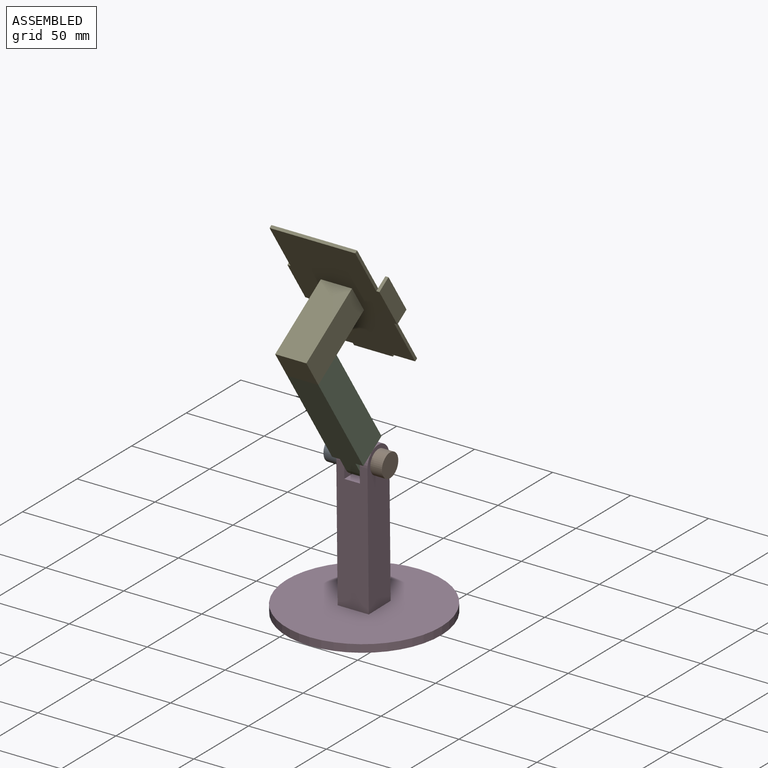
[diagram: assembled view]
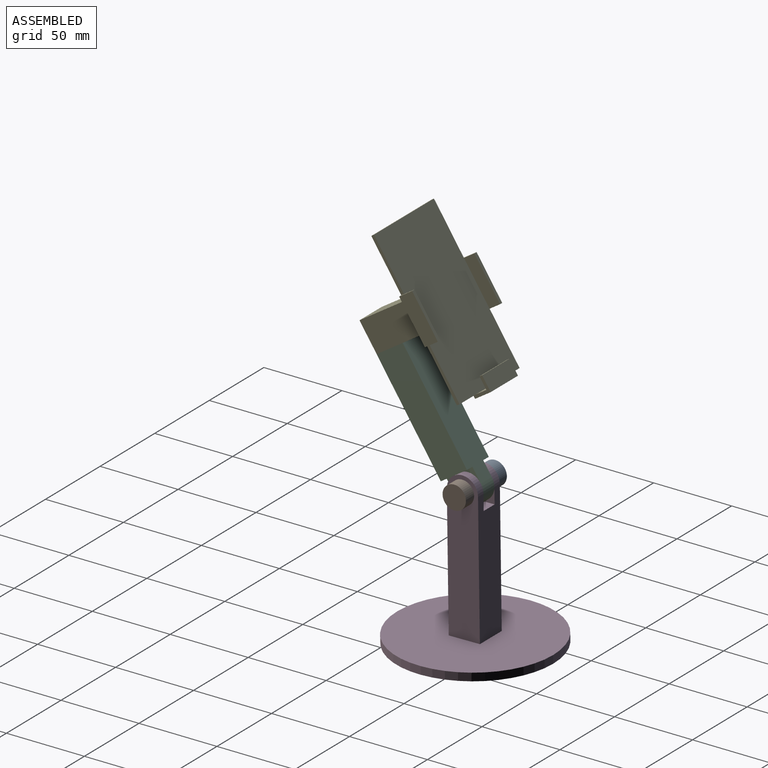
[diagram: assembled view, second angle]
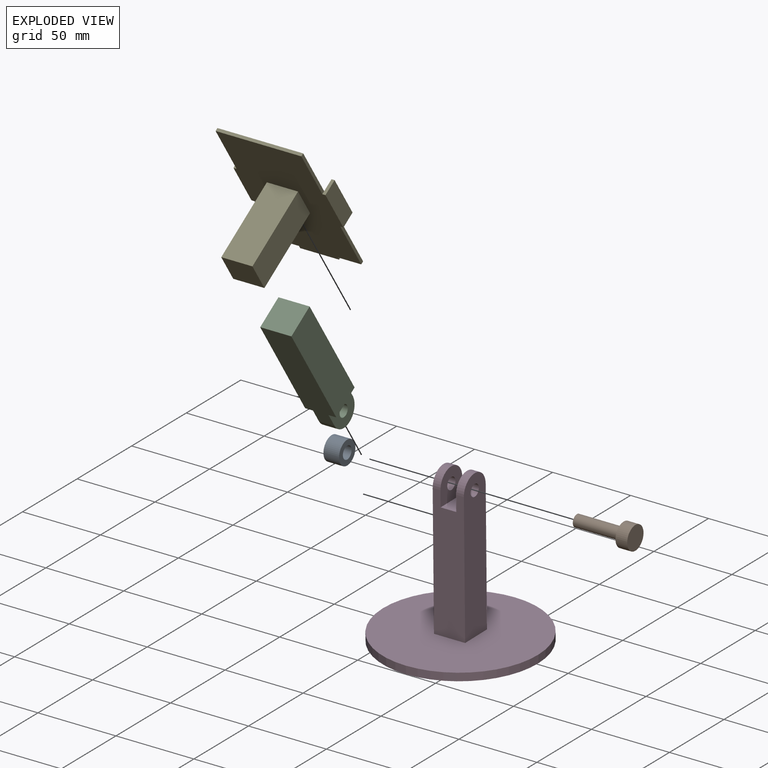
[diagram: exploded view]
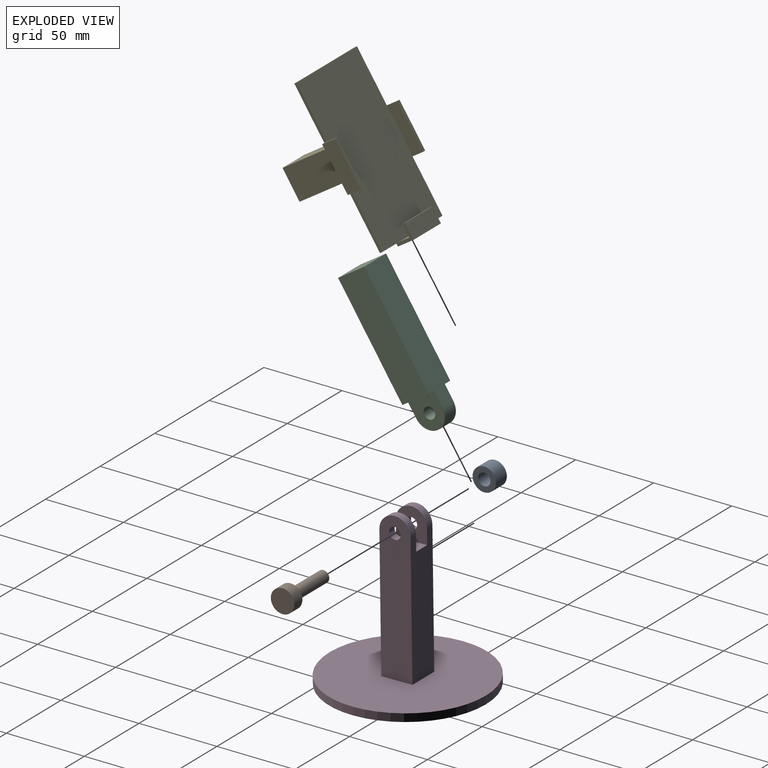
[diagram: exploded view, second angle]
ASSEMBLY  parts=5 mates=4
PART A: 4 faces, bbox 15x15x10 mm
  f0: cylinder r=4mm len=10mm, axis (0,0,-1), area 251.3mm2, adj f2,f3
  f1: cylinder r=7.5mm len=15mm, axis (0,0,-1), area 471.2mm2, adj f2,f3
  f2: plane 15x15mm, normal (0,0,1), area 126.4mm2, adj f0,f1
  f3: plane 15x15mm, normal (0,0,-1), area 126.4mm2, adj f0,f1
PART B: 5 faces, bbox 15x15x37.5 mm
  f0: cylinder r=7.5mm len=15mm, axis (0,0,-1), area 353.4mm2, adj f1,f2
  f1: plane 15x15mm, normal (0,0,1), area 132.5mm2, adj f0,f3
  f2: plane 15x15mm, normal (0,0,-1), area 176.7mm2, adj f0
  f3: cylinder r=3.75mm len=30mm, axis (0,0,-1), area 706.9mm2, adj f1,f4
  f4: plane 7.5x7.5mm, normal (0,0,1), area 44.2mm2, adj f3
PART C: 11 faces, bbox 20x20x95 mm
  f0: plane 20x5mm, normal (0,0,1), area 100mm2, adj f2,f3,f4,f8
  f1: plane 75x20mm, normal (1,0,0), area 1500mm2, adj f2,f4,f5,f6
  f2: plane 85x20mm, normal (0,1,0), area 1600mm2, adj f0,f1,f3,f5,f6,f7,f8,f9
  f3: plane 75x20mm, normal (-1,0,0), area 1500mm2, adj f0,f2,f4,f6
  f4: plane 85x20mm, normal (0,-1,0), area 1600mm2, adj f0,f1,f3,f5,f6,f7,f8,f9
  f5: plane 20x5mm, normal (0,0,1), area 100mm2, adj f1,f2,f4,f7
  f6: plane 20x20mm, normal (0,0,-1), area 400mm2, adj f1,f2,f3,f4
  f7: plane 20x20mm, normal (1,0,0), area 312.9mm2, adj f2,f4,f5,f9,f10
  f8: plane 20x20mm, normal (-1,0,0), area 312.9mm2, adj f0,f2,f4,f9,f10
  f9: cylinder r=10mm len=20mm, axis (-1,0,0), area 314.2mm2, adj f2,f4,f7,f8
  f10: cylinder r=3.75mm len=10mm, axis (1,0,0), area 235.6mm2, adj f7,f8
PART D: 14 faces, bbox 100x100x100 mm
  f0: plane 20x10mm, normal (0,0,1), area 200mm2, adj f5,f7,f8,f9
  f1: plane 100x100mm, normal (0,0,1), area 7454mm2, adj f2,f4,f5,f6,f7
  f2: cylinder r=50mm len=100mm, axis (0,0,-1), area 1570.8mm2, adj f1,f3
  f3: plane 100x100mm, normal (0,0,-1), area 7854mm2, adj f2
  f4: plane 95x20mm, normal (1,0,0), area 1812.9mm2, adj f1,f5,f7,f10,f12
  f5: plane 85x20mm, normal (0,1,0), area 1600mm2, adj f0,f1,f4,f6,f8,f9,f10,f11
  f6: plane 95x20mm, normal (-1,0,0), area 1812.9mm2, adj f1,f5,f7,f11,f13
  f7: plane 85x20mm, normal (0,-1,0), area 1600mm2, adj f0,f1,f4,f6,f8,f9,f10,f11
  f8: plane 20x20mm, normal (1,0,0), area 312.9mm2, adj f0,f5,f7,f11,f13
  f9: plane 20x20mm, normal (-1,0,0), area 312.9mm2, adj f0,f5,f7,f10,f12
  f10: cylinder r=10mm len=20mm, axis (1,0,0), area 157.1mm2, adj f4,f5,f7,f9
  f11: cylinder r=10mm len=20mm, axis (-1,0,0), area 157.1mm2, adj f5,f6,f7,f8
  f12: cylinder r=3.75mm len=7.5mm, axis (1,0,0), area 117.8mm2, adj f4,f9
  f13: cylinder r=3.75mm len=7.5mm, axis (1,0,0), area 117.8mm2, adj f6,f8
PART E: 31 faces, bbox 59x102x62 mm
  f0: plane 15x2mm, normal (0,-1,0), area 30mm2, adj f2,f12,f13,f25
  f1: plane 35x2mm, normal (-1,0,0), area 70mm2, adj f10,f12,f13,f20
  f2: plane 35x2mm, normal (1,0,0), area 70mm2, adj f0,f12,f13,f15
  f3: plane 50x20mm, normal (1,0,0), area 1000mm2, adj f4,f6,f7,f13
  f4: plane 50x20mm, normal (0,1,0), area 1000mm2, adj f3,f5,f7,f13
  f5: plane 50x20mm, normal (-1,0,0), area 1000mm2, adj f4,f6,f7,f13
  f6: plane 50x20mm, normal (0,-1,0), area 1000mm2, adj f3,f5,f7,f13
  f7: plane 20x20mm, normal (0,0,-1), area 400mm2, adj f3,f4,f5,f6
  f8: plane 55x2mm, normal (0,1,0), area 110mm2, adj f9,f11,f12,f13
  f9: plane 35x2mm, normal (-1,0,0), area 70mm2, adj f8,f12,f13,f19
  f10: plane 15x2mm, normal (0,-1,0), area 30mm2, adj f1,f12,f13,f24
  f11: plane 35x2mm, normal (1,0,0), area 70mm2, adj f8,f12,f13,f16
  f12: plane 100x55mm, normal (0,0,1), area 5500mm2, adj f0,f1,f2,f8,f9,f10,f11,f14
  f13: plane 102x59mm, normal (0,0,-1), area 5270mm2, adj f0,f1,f2,f3,f4,f5,f6,f8
  f14: plane 30x8mm, normal (-1,0,0), area 240mm2, adj f12,f15,f16,f17
  f15: plane 10x2mm, normal (0,-1,0), area 20mm2, adj f2,f13,f14,f17,f18
  f16: plane 10x2mm, normal (0,1,0), area 20mm2, adj f11,f13,f14,f17,f18
  f17: plane 30x2mm, normal (0,0,1), area 60mm2, adj f14,f15,f16,f18
  f18: plane 30x10mm, normal (1,0,0), area 300mm2, adj f13,f15,f16,f17
  f19: plane 10x2mm, normal (0,1,0), area 20mm2, adj f9,f13,f21,f22,f23
  f20: plane 10x2mm, normal (0,-1,0), area 20mm2, adj f1,f13,f21,f22,f23
  f21: plane 30x2mm, normal (0,0,1), area 60mm2, adj f19,f20,f22,f23
  f22: plane 30x10mm, normal (-1,0,0), area 300mm2, adj f13,f19,f20,f21
  f23: plane 30x8mm, normal (1,0,0), area 240mm2, adj f12,f19,f20,f21
  f24: plane 12x10mm, normal (-1,0,0), area 40mm2, adj f10,f13,f26,f27,f28,f29,f30
  f25: plane 12x10mm, normal (1,0,0), area 40mm2, adj f0,f13,f26,f27,f28,f29,f30
  f26: plane 25x12mm, normal (0,-1,0), area 300mm2, adj f13,f24,f25,f29
  f27: plane 25x8mm, normal (0,1,0), area 200mm2, adj f12,f24,f25,f30
  f28: plane 25x2mm, normal (0,1,0), area 50mm2, adj f24,f25,f29,f30
  f29: plane 25x10mm, normal (0,0,1), area 250mm2, adj f24,f25,f26,f28
  f30: plane 25x8mm, normal (0,0,-1), area 200mm2, adj f24,f25,f27,f28
PLACE A rot(axis=(-0.71,0,-0.71),179.4deg) t=(-45.69,141.47,256.03)mm
PLACE B rot(axis=(0,-1,0),90deg) t=(-8.19,141.47,256.03)mm
PLACE C rot(axis=(0,-0.96,-0.29),180deg) t=(-25.69,94.8,327.07)mm
PLACE D rot(axis=(1,0,0),0.8deg) t=(-25.69,142.74,166.04)mm
PLACE E rot(axis=(0,-0.47,-0.88),180deg) t=(-25.69,80.95,329.94)mm
MATE cylindrical B.f3 <-> D.f10  axis (1,0,0) through (-15.69,141.47,256.03)mm
MATE fastened E.f6 <-> C.f6  axis (0,0.55,-0.84) through (-25.69,86.44,321.58)mm
MATE cylindrical C.f10 <-> D.f10  axis (1,0,0) through (-20.69,141.47,256.03)mm
MATE revolute A.f0 <-> D.f10  axis (1,0,0) through (-35.69,141.47,256.03)mm
